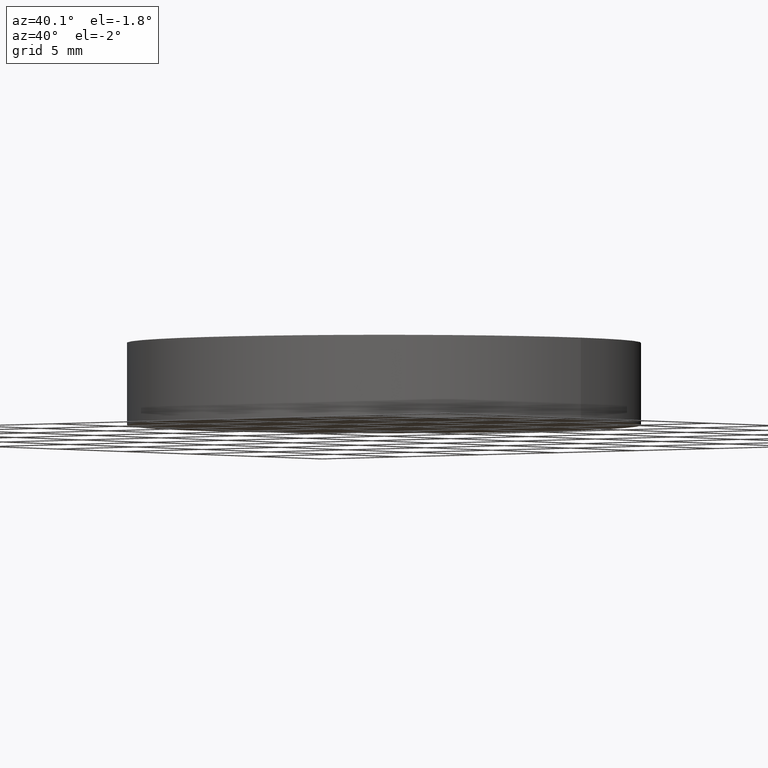
[diagram: clean part render]
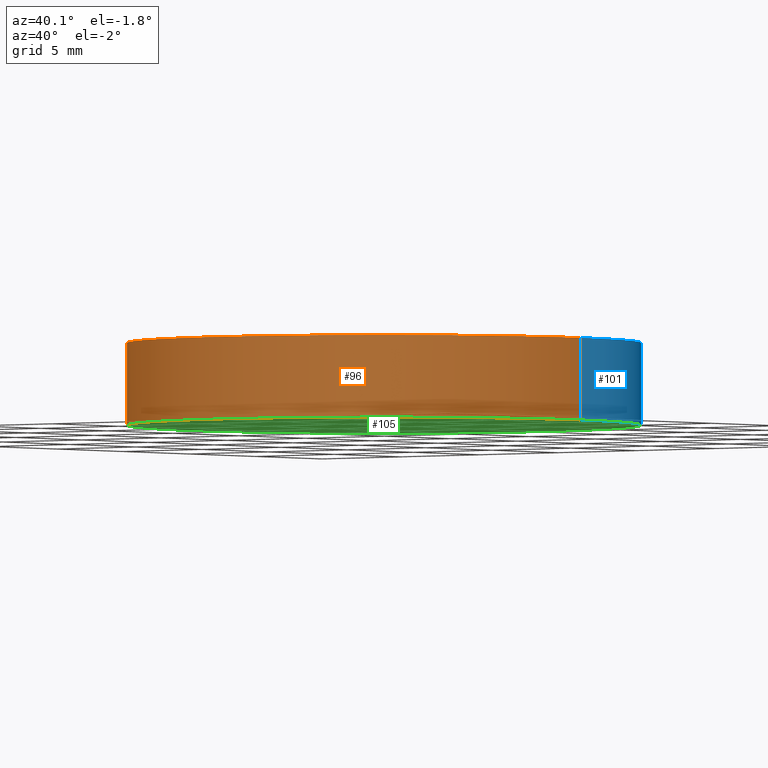
[diagram: same view with three faces highlighted in distinct colors, each labeled with its STEP entity id]
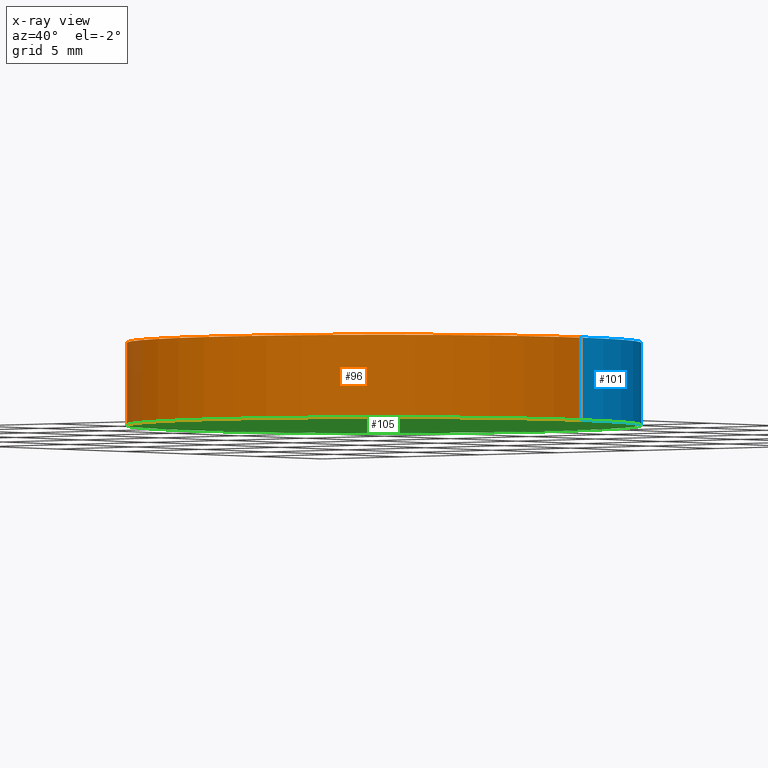
[diagram: x-ray of the same camera — body ghosted, the three highlighted faces saturated]
A machine part, auxiliary view with three faces highlighted in distinct colors.
The next image is the same camera in x-ray (body ghosted, the three faces saturated) — at least one of them is partly hidden behind the body in this view.
Their STEP definitions:

[orange] entity #96 — the highlighted cylindrical surface (partial cylindrical patch) has radius 12.5 mm, axis along (-0, -0, -1).
#3 = CARTESIAN_POINT ( 'NONE',  ( 0.0000000000000000000, 0.0000000000000000000, 4.000000000000000000 ) ) ;
#4 = CARTESIAN_POINT ( 'NONE',  ( -12.50000000000000000, 0.0000000000000000000, 4.000000000000000000 ) ) ;
#5 = ORIENTED_EDGE ( 'NONE', *, *, #18, .F. ) ;
#11 = CARTESIAN_POINT ( 'NONE',  ( 12.50000000000000000, 1.530808498934191500E-015, 4.000000000000000000 ) ) ;
#14 = CARTESIAN_POINT ( 'NONE',  ( -12.50000000000000000, 0.0000000000000000000, 4.000000000000000000 ) ) ;
#15 = VECTOR ( 'NONE', #111, 1000.000000000000000 ) ;
#18 = EDGE_CURVE ( 'NONE', #90, #91, #40, .T. ) ;
#20 = AXIS2_PLACEMENT_3D ( 'NONE', #3, #113, #50 ) ;
#21 = CIRCLE ( 'NONE', #20, 12.50000000000000000 ) ;
#34 = DIRECTION ( 'NONE',  ( -0.0000000000000000000, -0.0000000000000000000, -1.000000000000000000 ) ) ;
#35 = CARTESIAN_POINT ( 'NONE',  ( 0.0000000000000000000, 0.0000000000000000000, 4.000000000000000000 ) ) ;
#38 = ORIENTED_EDGE ( 'NONE', *, *, #102, .T. ) ;
#40 = LINE ( 'NONE', #109, #57 ) ;
#41 = DIRECTION ( 'NONE',  ( 1.000000000000000000, 0.0000000000000000000, 0.0000000000000000000 ) ) ;
#42 = LINE ( 'NONE', #4, #15 ) ;
#46 = DIRECTION ( 'NONE',  ( 0.0000000000000000000, 0.0000000000000000000, 1.000000000000000000 ) ) ;
#49 = CARTESIAN_POINT ( 'NONE',  ( -12.50000000000000000, 0.0000000000000000000, 0.0000000000000000000 ) ) ;
#50 = DIRECTION ( 'NONE',  ( 1.000000000000000000, 0.0000000000000000000, 0.0000000000000000000 ) ) ;
#53 = CARTESIAN_POINT ( 'NONE',  ( 0.0000000000000000000, 0.0000000000000000000, 0.0000000000000000000 ) ) ;
#57 = VECTOR ( 'NONE', #34, 1000.000000000000000 ) ;
#60 = EDGE_LOOP ( 'NONE', ( #5, #100, #72, #38 ) ) ;
#64 = EDGE_CURVE ( 'NONE', #122, #90, #21, .T. ) ;
#67 = AXIS2_PLACEMENT_3D ( 'NONE', #35, #123, #140 ) ;
#68 = CIRCLE ( 'NONE', #76, 12.50000000000000000 ) ;
#72 = ORIENTED_EDGE ( 'NONE', *, *, #92, .T. ) ;
#73 = CARTESIAN_POINT ( 'NONE',  ( 12.50000000000000000, 1.530808498934191500E-015, 0.0000000000000000000 ) ) ;
#76 = AXIS2_PLACEMENT_3D ( 'NONE', #53, #46, #41 ) ;
#77 = FACE_OUTER_BOUND ( 'NONE', #60, .T. ) ;
#90 = VERTEX_POINT ( 'NONE', #11 ) ;
#91 = VERTEX_POINT ( 'NONE', #73 ) ;
#92 = EDGE_CURVE ( 'NONE', #122, #126, #42, .T. ) ;
#94 = CYLINDRICAL_SURFACE ( 'NONE', #67, 12.50000000000000000 ) ;
#96 = ADVANCED_FACE ( 'NONE', ( #77 ), #94, .T. ) ;
#100 = ORIENTED_EDGE ( 'NONE', *, *, #64, .F. ) ;
#102 = EDGE_CURVE ( 'NONE', #126, #91, #68, .T. ) ;
#109 = CARTESIAN_POINT ( 'NONE',  ( 12.50000000000000000, 1.530808498934191500E-015, 4.000000000000000000 ) ) ;
#111 = DIRECTION ( 'NONE',  ( -0.0000000000000000000, -0.0000000000000000000, -1.000000000000000000 ) ) ;
#113 = DIRECTION ( 'NONE',  ( 0.0000000000000000000, 0.0000000000000000000, 1.000000000000000000 ) ) ;
#122 = VERTEX_POINT ( 'NONE', #14 ) ;
#123 = DIRECTION ( 'NONE',  ( -0.0000000000000000000, -0.0000000000000000000, -1.000000000000000000 ) ) ;
#126 = VERTEX_POINT ( 'NONE', #49 ) ;
#140 = DIRECTION ( 'NONE',  ( -1.000000000000000000, 0.0000000000000000000, 0.0000000000000000000 ) ) ;

[blue] entity #101 — the highlighted cylindrical surface (partial cylindrical patch) has radius 12.5 mm, axis along (-0, -0, -1).
#4 = CARTESIAN_POINT ( 'NONE',  ( -12.50000000000000000, 0.0000000000000000000, 4.000000000000000000 ) ) ;
#8 = EDGE_CURVE ( 'NONE', #90, #122, #116, .T. ) ;
#11 = CARTESIAN_POINT ( 'NONE',  ( 12.50000000000000000, 1.530808498934191500E-015, 4.000000000000000000 ) ) ;
#12 = ORIENTED_EDGE ( 'NONE', *, *, #18, .T. ) ;
#13 = DIRECTION ( 'NONE',  ( 1.000000000000000000, 0.0000000000000000000, 0.0000000000000000000 ) ) ;
#14 = CARTESIAN_POINT ( 'NONE',  ( -12.50000000000000000, 0.0000000000000000000, 4.000000000000000000 ) ) ;
#15 = VECTOR ( 'NONE', #111, 1000.000000000000000 ) ;
#18 = EDGE_CURVE ( 'NONE', #90, #91, #40, .T. ) ;
#25 = CARTESIAN_POINT ( 'NONE',  ( 0.0000000000000000000, 0.0000000000000000000, 0.0000000000000000000 ) ) ;
#34 = DIRECTION ( 'NONE',  ( -0.0000000000000000000, -0.0000000000000000000, -1.000000000000000000 ) ) ;
#37 = DIRECTION ( 'NONE',  ( -0.0000000000000000000, -0.0000000000000000000, -1.000000000000000000 ) ) ;
#39 = CYLINDRICAL_SURFACE ( 'NONE', #81, 12.50000000000000000 ) ;
#40 = LINE ( 'NONE', #109, #57 ) ;
#42 = LINE ( 'NONE', #4, #15 ) ;
#47 = CIRCLE ( 'NONE', #82, 12.50000000000000000 ) ;
#48 = CARTESIAN_POINT ( 'NONE',  ( 0.0000000000000000000, 0.0000000000000000000, 4.000000000000000000 ) ) ;
#49 = CARTESIAN_POINT ( 'NONE',  ( -12.50000000000000000, 0.0000000000000000000, 0.0000000000000000000 ) ) ;
#57 = VECTOR ( 'NONE', #34, 1000.000000000000000 ) ;
#66 = EDGE_CURVE ( 'NONE', #91, #126, #47, .T. ) ;
#71 = AXIS2_PLACEMENT_3D ( 'NONE', #48, #139, #13 ) ;
#73 = CARTESIAN_POINT ( 'NONE',  ( 12.50000000000000000, 1.530808498934191500E-015, 0.0000000000000000000 ) ) ;
#74 = FACE_OUTER_BOUND ( 'NONE', #97, .T. ) ;
#81 = AXIS2_PLACEMENT_3D ( 'NONE', #137, #37, #120 ) ;
#82 = AXIS2_PLACEMENT_3D ( 'NONE', #25, #131, #87 ) ;
#86 = ORIENTED_EDGE ( 'NONE', *, *, #66, .T. ) ;
#87 = DIRECTION ( 'NONE',  ( 1.000000000000000000, 0.0000000000000000000, 0.0000000000000000000 ) ) ;
#90 = VERTEX_POINT ( 'NONE', #11 ) ;
#91 = VERTEX_POINT ( 'NONE', #73 ) ;
#92 = EDGE_CURVE ( 'NONE', #122, #126, #42, .T. ) ;
#97 = EDGE_LOOP ( 'NONE', ( #132, #12, #86, #117 ) ) ;
#101 = ADVANCED_FACE ( 'NONE', ( #74 ), #39, .T. ) ;
#109 = CARTESIAN_POINT ( 'NONE',  ( 12.50000000000000000, 1.530808498934191500E-015, 4.000000000000000000 ) ) ;
#111 = DIRECTION ( 'NONE',  ( -0.0000000000000000000, -0.0000000000000000000, -1.000000000000000000 ) ) ;
#116 = CIRCLE ( 'NONE', #71, 12.50000000000000000 ) ;
#117 = ORIENTED_EDGE ( 'NONE', *, *, #92, .F. ) ;
#120 = DIRECTION ( 'NONE',  ( -1.000000000000000000, 0.0000000000000000000, 0.0000000000000000000 ) ) ;
#122 = VERTEX_POINT ( 'NONE', #14 ) ;
#126 = VERTEX_POINT ( 'NONE', #49 ) ;
#131 = DIRECTION ( 'NONE',  ( 0.0000000000000000000, 0.0000000000000000000, 1.000000000000000000 ) ) ;
#132 = ORIENTED_EDGE ( 'NONE', *, *, #8, .F. ) ;
#137 = CARTESIAN_POINT ( 'NONE',  ( 0.0000000000000000000, 0.0000000000000000000, 4.000000000000000000 ) ) ;
#139 = DIRECTION ( 'NONE',  ( 0.0000000000000000000, 0.0000000000000000000, 1.000000000000000000 ) ) ;

[green] entity #105 — the highlighted planar face has unit normal (0, 0, 1).
#17 = EDGE_LOOP ( 'NONE', ( #33, #61 ) ) ;
#25 = CARTESIAN_POINT ( 'NONE',  ( 0.0000000000000000000, 0.0000000000000000000, 0.0000000000000000000 ) ) ;
#33 = ORIENTED_EDGE ( 'NONE', *, *, #102, .F. ) ;
#41 = DIRECTION ( 'NONE',  ( 1.000000000000000000, 0.0000000000000000000, 0.0000000000000000000 ) ) ;
#43 = DIRECTION ( 'NONE',  ( 0.0000000000000000000, 0.0000000000000000000, 1.000000000000000000 ) ) ;
#46 = DIRECTION ( 'NONE',  ( 0.0000000000000000000, 0.0000000000000000000, 1.000000000000000000 ) ) ;
#47 = CIRCLE ( 'NONE', #82, 12.50000000000000000 ) ;
#49 = CARTESIAN_POINT ( 'NONE',  ( -12.50000000000000000, 0.0000000000000000000, 0.0000000000000000000 ) ) ;
#53 = CARTESIAN_POINT ( 'NONE',  ( 0.0000000000000000000, 0.0000000000000000000, 0.0000000000000000000 ) ) ;
#61 = ORIENTED_EDGE ( 'NONE', *, *, #66, .F. ) ;
#66 = EDGE_CURVE ( 'NONE', #91, #126, #47, .T. ) ;
#68 = CIRCLE ( 'NONE', #76, 12.50000000000000000 ) ;
#73 = CARTESIAN_POINT ( 'NONE',  ( 12.50000000000000000, 1.530808498934191500E-015, 0.0000000000000000000 ) ) ;
#76 = AXIS2_PLACEMENT_3D ( 'NONE', #53, #46, #41 ) ;
#82 = AXIS2_PLACEMENT_3D ( 'NONE', #25, #131, #87 ) ;
#87 = DIRECTION ( 'NONE',  ( 1.000000000000000000, 0.0000000000000000000, 0.0000000000000000000 ) ) ;
#89 = DIRECTION ( 'NONE',  ( 1.000000000000000000, 0.0000000000000000000, -0.0000000000000000000 ) ) ;
#91 = VERTEX_POINT ( 'NONE', #73 ) ;
#93 = AXIS2_PLACEMENT_3D ( 'NONE', #108, #43, #89 ) ;
#98 = FACE_OUTER_BOUND ( 'NONE', #17, .T. ) ;
#99 = PLANE ( 'NONE',  #93 ) ;
#102 = EDGE_CURVE ( 'NONE', #126, #91, #68, .T. ) ;
#105 = ADVANCED_FACE ( 'NONE', ( #98 ), #99, .F. ) ;
#108 = CARTESIAN_POINT ( 'NONE',  ( 0.0000000000000000000, 0.0000000000000000000, 0.0000000000000000000 ) ) ;
#126 = VERTEX_POINT ( 'NONE', #49 ) ;
#131 = DIRECTION ( 'NONE',  ( 0.0000000000000000000, 0.0000000000000000000, 1.000000000000000000 ) ) ;